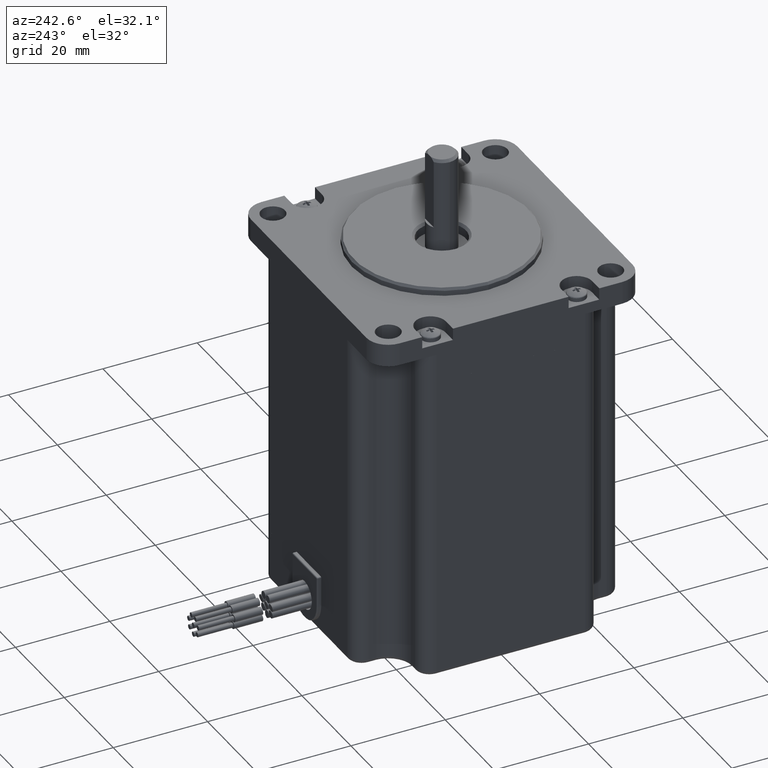
[diagram: clean part render]
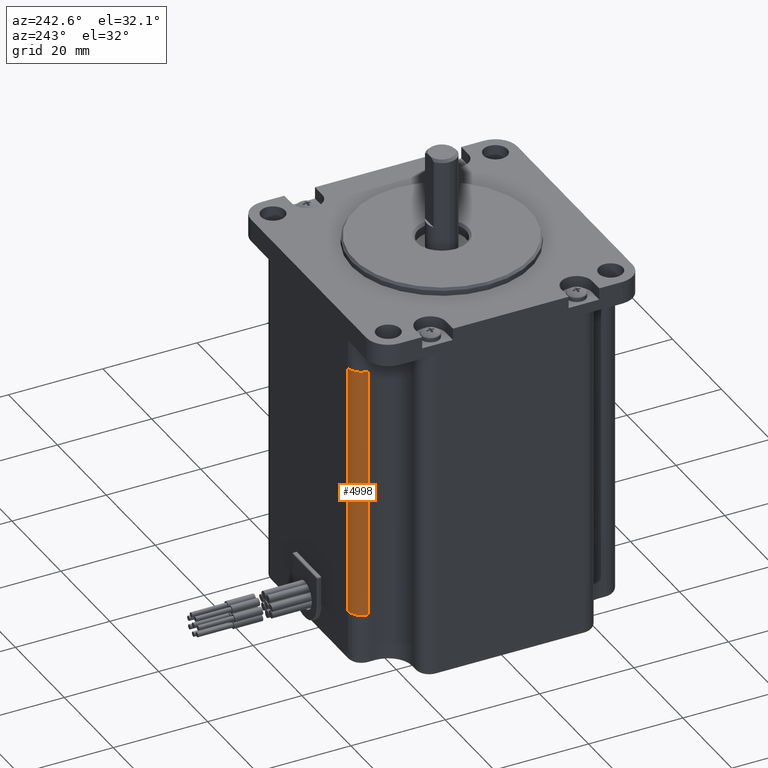
[diagram: same view with one face highlighted and labeled with its STEP entity id]
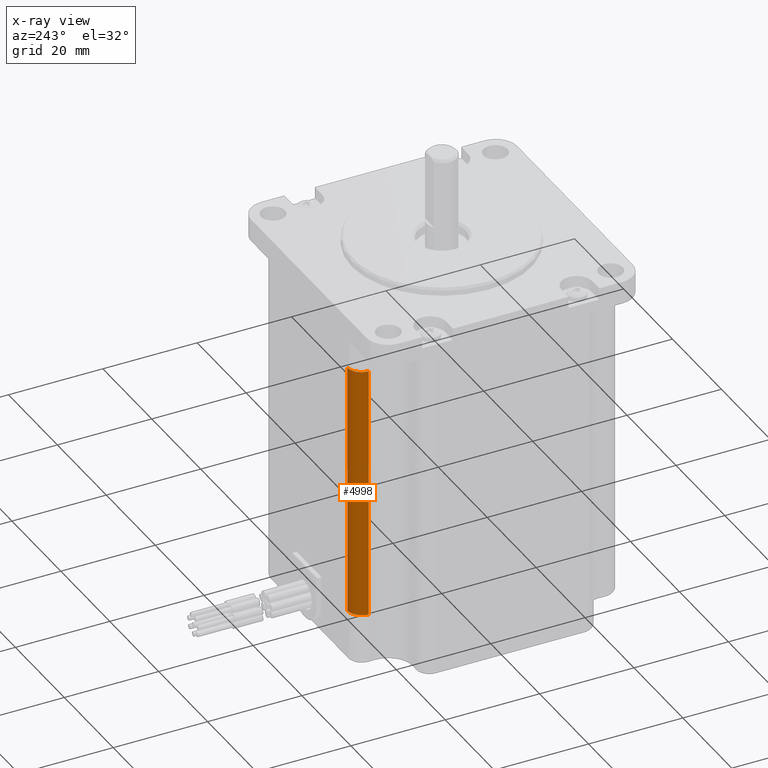
[diagram: x-ray of the same camera — body ghosted, the highlighted face saturated]
A machine part, auxiliary view. The second image highlights one B-rep face of the part: STEP entity #4998.
The next image is the same camera in x-ray: the body ghosted, the highlighted face saturated — about 0% of this face is hidden behind the body in this view.
In plain terms, the highlighted cylindrical surface (edge-blend (fillet) strip) has radius 3 mm, axis along (0, 0, 1).
Its self-contained STEP definition (entity closure, byte-faithful):
#4 = DIRECTION ( 'NONE',  ( 1.000000000000000000, 0.0000000000000000000, 0.0000000000000000000 ) ) ;
#811 = CYLINDRICAL_SURFACE ( 'NONE', #1293, 2.999999999999999100 ) ;
#931 = VERTEX_POINT ( 'NONE', #3339 ) ;
#1189 = EDGE_CURVE ( 'NONE', #931, #5577, #12066, .T. ) ;
#1256 = VERTEX_POINT ( 'NONE', #2005 ) ;
#1293 = AXIS2_PLACEMENT_3D ( 'NONE', #10284, #4673, #4 ) ;
#2005 = CARTESIAN_POINT ( 'NONE',  ( -18.75000000000000000, 25.19999999999999900, 0.0000000000000000000 ) ) ;
#2915 = CARTESIAN_POINT ( 'NONE',  ( -15.75000000000000000, 25.19999999999999900, -54.00000000000000000 ) ) ;
#3030 = DIRECTION ( 'NONE',  ( -1.000000000000000000, 0.0000000000000000000, 0.0000000000000000000 ) ) ;
#3339 = CARTESIAN_POINT ( 'NONE',  ( -18.75000000000000000, 25.19999999999999900, -54.00000000000000000 ) ) ;
#4476 = ORIENTED_EDGE ( 'NONE', *, *, #6332, .T. ) ;
#4611 = DIRECTION ( 'NONE',  ( 0.0000000000000000000, 0.0000000000000000000, -1.000000000000000000 ) ) ;
#4673 = DIRECTION ( 'NONE',  ( -0.0000000000000000000, -0.0000000000000000000, 1.000000000000000000 ) ) ;
#4998 = ADVANCED_FACE ( 'NONE', ( #8279 ), #811, .T. ) ;
#5238 = CARTESIAN_POINT ( 'NONE',  ( -15.75000000000000000, 28.19999999999999900, -54.00000000000000000 ) ) ;
#5435 = VERTEX_POINT ( 'NONE', #10262 ) ;
#5577 = VERTEX_POINT ( 'NONE', #7533 ) ;
#5579 = VECTOR ( 'NONE', #9464, 1000.000000000000000 ) ;
#5606 = DIRECTION ( 'NONE',  ( -1.000000000000000000, 0.0000000000000000000, 0.0000000000000000000 ) ) ;
#5646 = ORIENTED_EDGE ( 'NONE', *, *, #11230, .T. ) ;
#5881 = LINE ( 'NONE', #8525, #5579 ) ;
#6037 = AXIS2_PLACEMENT_3D ( 'NONE', #2915, #4611, #5606 ) ;
#6332 = EDGE_CURVE ( 'NONE', #931, #1256, #5881, .T. ) ;
#7236 = LINE ( 'NONE', #5238, #10729 ) ;
#7533 = CARTESIAN_POINT ( 'NONE',  ( -15.75000000000000000, 28.19999999999999900, -54.00000000000000000 ) ) ;
#7664 = CIRCLE ( 'NONE', #9582, 2.999999999999999100 ) ;
#8001 = DIRECTION ( 'NONE',  ( -0.0000000000000000000, -0.0000000000000000000, 1.000000000000000000 ) ) ;
#8279 = FACE_OUTER_BOUND ( 'NONE', #8356, .T. ) ;
#8356 = EDGE_LOOP ( 'NONE', ( #5646, #10691, #10109, #4476 ) ) ;
#8525 = CARTESIAN_POINT ( 'NONE',  ( -18.75000000000000000, 25.19999999999999900, -54.00000000000000000 ) ) ;
#8635 = DIRECTION ( 'NONE',  ( 0.0000000000000000000, 0.0000000000000000000, -1.000000000000000000 ) ) ;
#9464 = DIRECTION ( 'NONE',  ( -0.0000000000000000000, -0.0000000000000000000, 1.000000000000000000 ) ) ;
#9582 = AXIS2_PLACEMENT_3D ( 'NONE', #10394, #8635, #3030 ) ;
#10109 = ORIENTED_EDGE ( 'NONE', *, *, #1189, .F. ) ;
#10262 = CARTESIAN_POINT ( 'NONE',  ( -15.75000000000000000, 28.19999999999999900, 0.0000000000000000000 ) ) ;
#10284 = CARTESIAN_POINT ( 'NONE',  ( -15.75000000000000000, 25.19999999999999900, -54.00000000000000000 ) ) ;
#10394 = CARTESIAN_POINT ( 'NONE',  ( -15.75000000000000000, 25.19999999999999900, 0.0000000000000000000 ) ) ;
#10691 = ORIENTED_EDGE ( 'NONE', *, *, #10876, .F. ) ;
#10729 = VECTOR ( 'NONE', #8001, 1000.000000000000000 ) ;
#10876 = EDGE_CURVE ( 'NONE', #5577, #5435, #7236, .T. ) ;
#11230 = EDGE_CURVE ( 'NONE', #1256, #5435, #7664, .T. ) ;
#12066 = CIRCLE ( 'NONE', #6037, 2.999999999999999100 ) ;